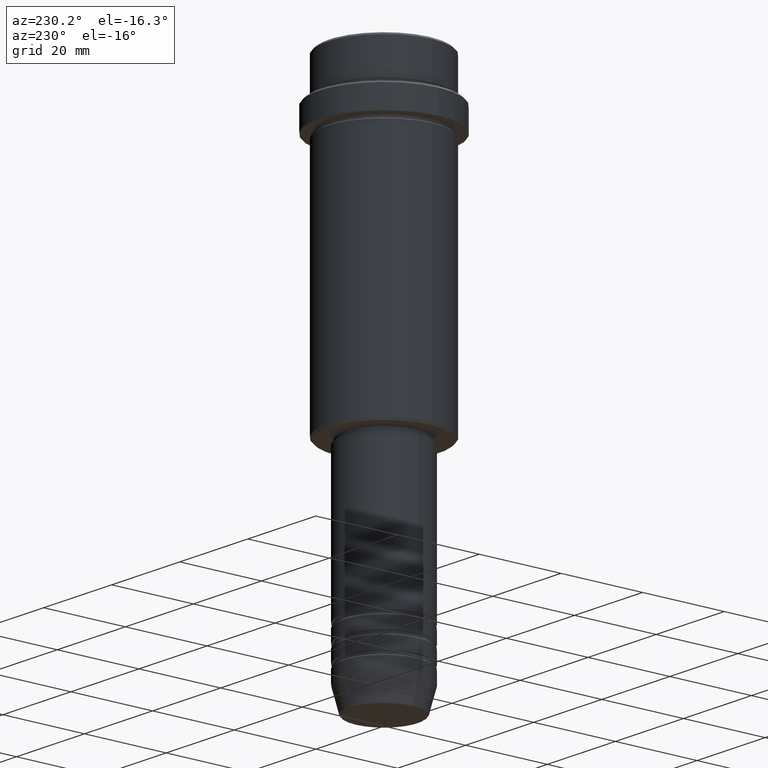
[diagram: clean part render]
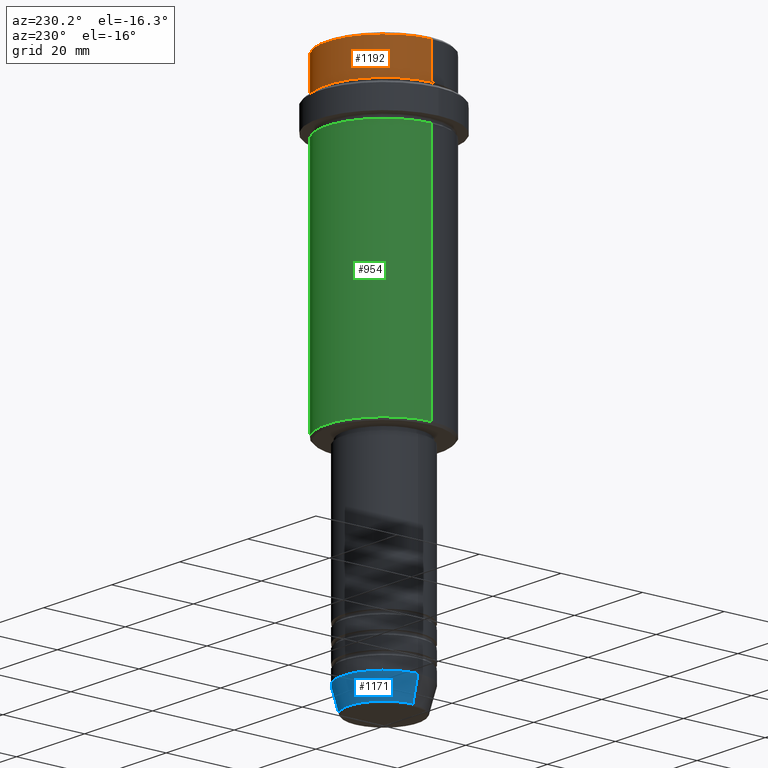
[diagram: same view with three faces highlighted in distinct colors, each labeled with its STEP entity id]
A machine part, auxiliary view with three faces highlighted in distinct colors.
Their STEP definitions:

[orange] entity #1192 — the highlighted cylindrical surface (partial cylindrical patch) has radius 14 mm, axis along (-0, -0, 1).
#56 = VERTEX_POINT ( 'NONE', #1280 ) ;
#65 = VERTEX_POINT ( 'NONE', #651 ) ;
#70 = EDGE_CURVE ( 'NONE', #359, #65, #1088, .T. ) ;
#176 = CYLINDRICAL_SURFACE ( 'NONE', #197, 13.99999999999999467 ) ;
#197 = AXIS2_PLACEMENT_3D ( 'NONE', #1270, #748, #773 ) ;
#203 = CARTESIAN_POINT ( 'NONE',  ( -13.99999999999999467, 1.714505518806294046E-15, 0.000000000000000000 ) ) ;
#256 = ORIENTED_EDGE ( 'NONE', *, *, #692, .T. ) ;
#359 = VERTEX_POINT ( 'NONE', #727 ) ;
#391 = DIRECTION ( 'NONE',  ( 1.000000000000000000, 0.000000000000000000, 0.000000000000000000 ) ) ;
#406 = CARTESIAN_POINT ( 'NONE',  ( 0.000000000000000000, 0.000000000000000000, -0.4999999999999900080 ) ) ;
#473 = DIRECTION ( 'NONE',  ( -0.000000000000000000, -0.000000000000000000, 1.000000000000000000 ) ) ;
#478 = EDGE_CURVE ( 'NONE', #1390, #359, #785, .T. ) ;
#604 = CIRCLE ( 'NONE', #1085, 13.99999999999999467 ) ;
#651 = CARTESIAN_POINT ( 'NONE',  ( -13.99999999999999467, 1.714505518806294046E-15, -0.4999999999999900080 ) ) ;
#692 = EDGE_CURVE ( 'NONE', #65, #56, #604, .T. ) ;
#727 = CARTESIAN_POINT ( 'NONE',  ( -13.99999999999998757, 1.714505518806293652E-15, -8.999999999999998224 ) ) ;
#748 = DIRECTION ( 'NONE',  ( -0.000000000000000000, -0.000000000000000000, 1.000000000000000000 ) ) ;
#773 = DIRECTION ( 'NONE',  ( 1.000000000000000000, 0.000000000000000000, 0.000000000000000000 ) ) ;
#775 = DIRECTION ( 'NONE',  ( -0.000000000000000000, -0.000000000000000000, 1.000000000000000000 ) ) ;
#785 = CIRCLE ( 'NONE', #1029, 13.99999999999998757 ) ;
#831 = CARTESIAN_POINT ( 'NONE',  ( 0.000000000000000000, 0.000000000000000000, -8.999999999999998224 ) ) ;
#841 = FACE_OUTER_BOUND ( 'NONE', #1417, .T. ) ;
#850 = VECTOR ( 'NONE', #473, 1000.000000000000000 ) ;
#1005 = CARTESIAN_POINT ( 'NONE',  ( 13.99999999999998757, 0.000000000000000000, -8.999999999999998224 ) ) ;
#1029 = AXIS2_PLACEMENT_3D ( 'NONE', #831, #1387, #1219 ) ;
#1039 = ORIENTED_EDGE ( 'NONE', *, *, #1165, .F. ) ;
#1085 = AXIS2_PLACEMENT_3D ( 'NONE', #406, #1257, #391 ) ;
#1088 = LINE ( 'NONE', #203, #1382 ) ;
#1147 = ORIENTED_EDGE ( 'NONE', *, *, #478, .T. ) ;
#1165 = EDGE_CURVE ( 'NONE', #1390, #56, #1331, .T. ) ;
#1192 = ADVANCED_FACE ( 'NONE', ( #841 ), #176, .T. ) ;
#1219 = DIRECTION ( 'NONE',  ( 1.000000000000000000, 0.000000000000000000, 0.000000000000000000 ) ) ;
#1223 = CARTESIAN_POINT ( 'NONE',  ( 13.99999999999999467, 0.000000000000000000, 0.000000000000000000 ) ) ;
#1257 = DIRECTION ( 'NONE',  ( 0.000000000000000000, 0.000000000000000000, -1.000000000000000000 ) ) ;
#1259 = ORIENTED_EDGE ( 'NONE', *, *, #70, .T. ) ;
#1270 = CARTESIAN_POINT ( 'NONE',  ( 0.000000000000000000, 0.000000000000000000, 0.000000000000000000 ) ) ;
#1280 = CARTESIAN_POINT ( 'NONE',  ( 13.99999999999999467, 0.000000000000000000, -0.4999999999999900080 ) ) ;
#1331 = LINE ( 'NONE', #1223, #850 ) ;
#1382 = VECTOR ( 'NONE', #775, 1000.000000000000000 ) ;
#1387 = DIRECTION ( 'NONE',  ( -0.000000000000000000, -0.000000000000000000, 1.000000000000000000 ) ) ;
#1390 = VERTEX_POINT ( 'NONE', #1005 ) ;
#1417 = EDGE_LOOP ( 'NONE', ( #1147, #1259, #256, #1039 ) ) ;

[blue] entity #1171 — the highlighted conical surface has half-angle 15 deg.
#87 = EDGE_LOOP ( 'NONE', ( #250, #615, #516, #1260 ) ) ;
#102 = CONICAL_SURFACE ( 'NONE', #765, 10.00000000000000000, 0.2617993877991498519 ) ;
#116 = CARTESIAN_POINT ( 'NONE',  ( 0.000000000000000000, 0.000000000000000000, -124.0000000000000000 ) ) ;
#117 = VERTEX_POINT ( 'NONE', #1180 ) ;
#151 = VECTOR ( 'NONE', #788, 1000.000000000000114 ) ;
#173 = CIRCLE ( 'NONE', #504, 10.00000000000000000 ) ;
#236 = EDGE_CURVE ( 'NONE', #520, #1151, #451, .T. ) ;
#247 = CARTESIAN_POINT ( 'NONE',  ( -8.491604264568309191, 1.132284198685156387E-15, -129.6294095225512706 ) ) ;
#250 = ORIENTED_EDGE ( 'NONE', *, *, #493, .T. ) ;
#251 = DIRECTION ( 'NONE',  ( -0.000000000000000000, -0.000000000000000000, 1.000000000000000000 ) ) ;
#292 = CIRCLE ( 'NONE', #830, 8.491604264568309191 ) ;
#302 = DIRECTION ( 'NONE',  ( -0.000000000000000000, -0.000000000000000000, 1.000000000000000000 ) ) ;
#319 = CARTESIAN_POINT ( 'NONE',  ( 0.000000000000000000, 0.000000000000000000, -129.6294095225512706 ) ) ;
#368 = FACE_OUTER_BOUND ( 'NONE', #87, .T. ) ;
#372 = CARTESIAN_POINT ( 'NONE',  ( 10.00000000000000000, 0.000000000000000000, -124.0000000000000000 ) ) ;
#377 = DIRECTION ( 'NONE',  ( 1.000000000000000000, 0.000000000000000000, 0.000000000000000000 ) ) ;
#393 = EDGE_CURVE ( 'NONE', #1151, #117, #173, .T. ) ;
#451 = LINE ( 'NONE', #372, #151 ) ;
#493 = EDGE_CURVE ( 'NONE', #520, #943, #292, .T. ) ;
#504 = AXIS2_PLACEMENT_3D ( 'NONE', #1358, #603, #377 ) ;
#516 = ORIENTED_EDGE ( 'NONE', *, *, #393, .F. ) ;
#520 = VERTEX_POINT ( 'NONE', #1401 ) ;
#603 = DIRECTION ( 'NONE',  ( -0.000000000000000000, -0.000000000000000000, 1.000000000000000000 ) ) ;
#615 = ORIENTED_EDGE ( 'NONE', *, *, #1353, .T. ) ;
#765 = AXIS2_PLACEMENT_3D ( 'NONE', #116, #251, #1306 ) ;
#788 = DIRECTION ( 'NONE',  ( 0.2588190451025211281, 0.000000000000000000, 0.9659258262890680902 ) ) ;
#830 = AXIS2_PLACEMENT_3D ( 'NONE', #319, #302, #1060 ) ;
#891 = LINE ( 'NONE', #914, #1362 ) ;
#914 = CARTESIAN_POINT ( 'NONE',  ( -10.00000000000000000, 1.224646799147353256E-15, -124.0000000000000000 ) ) ;
#943 = VERTEX_POINT ( 'NONE', #247 ) ;
#1016 = DIRECTION ( 'NONE',  ( -0.2588190451025211281, 3.169619151431769872E-17, 0.9659258262890680902 ) ) ;
#1020 = CARTESIAN_POINT ( 'NONE',  ( 10.00000000000000000, 0.000000000000000000, -124.0000000000000000 ) ) ;
#1060 = DIRECTION ( 'NONE',  ( 1.000000000000000000, 0.000000000000000000, 0.000000000000000000 ) ) ;
#1151 = VERTEX_POINT ( 'NONE', #1020 ) ;
#1171 = ADVANCED_FACE ( 'NONE', ( #368 ), #102, .T. ) ;
#1180 = CARTESIAN_POINT ( 'NONE',  ( -10.00000000000000000, 1.224646799147353256E-15, -124.0000000000000000 ) ) ;
#1260 = ORIENTED_EDGE ( 'NONE', *, *, #236, .F. ) ;
#1306 = DIRECTION ( 'NONE',  ( 1.000000000000000000, 0.000000000000000000, 0.000000000000000000 ) ) ;
#1353 = EDGE_CURVE ( 'NONE', #943, #117, #891, .T. ) ;
#1358 = CARTESIAN_POINT ( 'NONE',  ( 0.000000000000000000, 0.000000000000000000, -124.0000000000000000 ) ) ;
#1362 = VECTOR ( 'NONE', #1016, 1000.000000000000114 ) ;
#1401 = CARTESIAN_POINT ( 'NONE',  ( 8.491604264568309191, 0.000000000000000000, -129.6294095225512706 ) ) ;

[green] entity #954 — the highlighted cylindrical surface (partial cylindrical patch) has radius 14 mm, axis along (-0, -0, 1).
#77 = DIRECTION ( 'NONE',  ( -1.000000000000000000, 0.000000000000000000, 0.000000000000000000 ) ) ;
#340 = EDGE_LOOP ( 'NONE', ( #472, #998, #923, #1073 ) ) ;
#373 = DIRECTION ( 'NONE',  ( -0.000000000000000000, -0.000000000000000000, 1.000000000000000000 ) ) ;
#402 = DIRECTION ( 'NONE',  ( -0.000000000000000000, -0.000000000000000000, 1.000000000000000000 ) ) ;
#472 = ORIENTED_EDGE ( 'NONE', *, *, #1050, .T. ) ;
#537 = VERTEX_POINT ( 'NONE', #871 ) ;
#579 = CYLINDRICAL_SURFACE ( 'NONE', #1137, 13.99999999999999467 ) ;
#617 = VECTOR ( 'NONE', #1234, 1000.000000000000000 ) ;
#672 = DIRECTION ( 'NONE',  ( 1.000000000000000000, 0.000000000000000000, 0.000000000000000000 ) ) ;
#706 = EDGE_CURVE ( 'NONE', #537, #863, #1145, .T. ) ;
#719 = AXIS2_PLACEMENT_3D ( 'NONE', #1275, #402, #950 ) ;
#762 = VECTOR ( 'NONE', #1333, 1000.000000000000000 ) ;
#810 = CARTESIAN_POINT ( 'NONE',  ( -13.99999999999999467, 1.714505518806294046E-15, 0.000000000000000000 ) ) ;
#863 = VERTEX_POINT ( 'NONE', #1076 ) ;
#871 = CARTESIAN_POINT ( 'NONE',  ( 13.99999999999998757, 0.000000000000000000, -17.00000000000000355 ) ) ;
#876 = DIRECTION ( 'NONE',  ( -0.000000000000000000, -0.000000000000000000, 1.000000000000000000 ) ) ;
#890 = CIRCLE ( 'NONE', #1138, 13.99999999999999467 ) ;
#907 = LINE ( 'NONE', #1011, #762 ) ;
#913 = LINE ( 'NONE', #810, #617 ) ;
#923 = ORIENTED_EDGE ( 'NONE', *, *, #706, .F. ) ;
#950 = DIRECTION ( 'NONE',  ( 1.000000000000000000, 0.000000000000000000, 0.000000000000000000 ) ) ;
#954 = ADVANCED_FACE ( 'NONE', ( #1339 ), #579, .T. ) ;
#964 = CARTESIAN_POINT ( 'NONE',  ( 0.000000000000000000, 0.000000000000000000, -75.49999999999997158 ) ) ;
#967 = EDGE_CURVE ( 'NONE', #1162, #537, #907, .T. ) ;
#998 = ORIENTED_EDGE ( 'NONE', *, *, #1001, .T. ) ;
#1001 = EDGE_CURVE ( 'NONE', #1155, #863, #913, .T. ) ;
#1011 = CARTESIAN_POINT ( 'NONE',  ( 13.99999999999999467, 0.000000000000000000, 0.000000000000000000 ) ) ;
#1050 = EDGE_CURVE ( 'NONE', #1162, #1155, #890, .T. ) ;
#1053 = CARTESIAN_POINT ( 'NONE',  ( -13.99999999999999467, 1.714505518806294046E-15, -75.49999999999997158 ) ) ;
#1073 = ORIENTED_EDGE ( 'NONE', *, *, #967, .F. ) ;
#1076 = CARTESIAN_POINT ( 'NONE',  ( -13.99999999999998757, 1.714505518806293652E-15, -17.00000000000000355 ) ) ;
#1137 = AXIS2_PLACEMENT_3D ( 'NONE', #1349, #373, #672 ) ;
#1138 = AXIS2_PLACEMENT_3D ( 'NONE', #964, #876, #77 ) ;
#1145 = CIRCLE ( 'NONE', #719, 13.99999999999998757 ) ;
#1155 = VERTEX_POINT ( 'NONE', #1053 ) ;
#1162 = VERTEX_POINT ( 'NONE', #1212 ) ;
#1212 = CARTESIAN_POINT ( 'NONE',  ( 13.99999999999999467, 0.000000000000000000, -75.49999999999997158 ) ) ;
#1234 = DIRECTION ( 'NONE',  ( -0.000000000000000000, -0.000000000000000000, 1.000000000000000000 ) ) ;
#1275 = CARTESIAN_POINT ( 'NONE',  ( 0.000000000000000000, 0.000000000000000000, -17.00000000000000355 ) ) ;
#1333 = DIRECTION ( 'NONE',  ( -0.000000000000000000, -0.000000000000000000, 1.000000000000000000 ) ) ;
#1339 = FACE_OUTER_BOUND ( 'NONE', #340, .T. ) ;
#1349 = CARTESIAN_POINT ( 'NONE',  ( 0.000000000000000000, 0.000000000000000000, 0.000000000000000000 ) ) ;